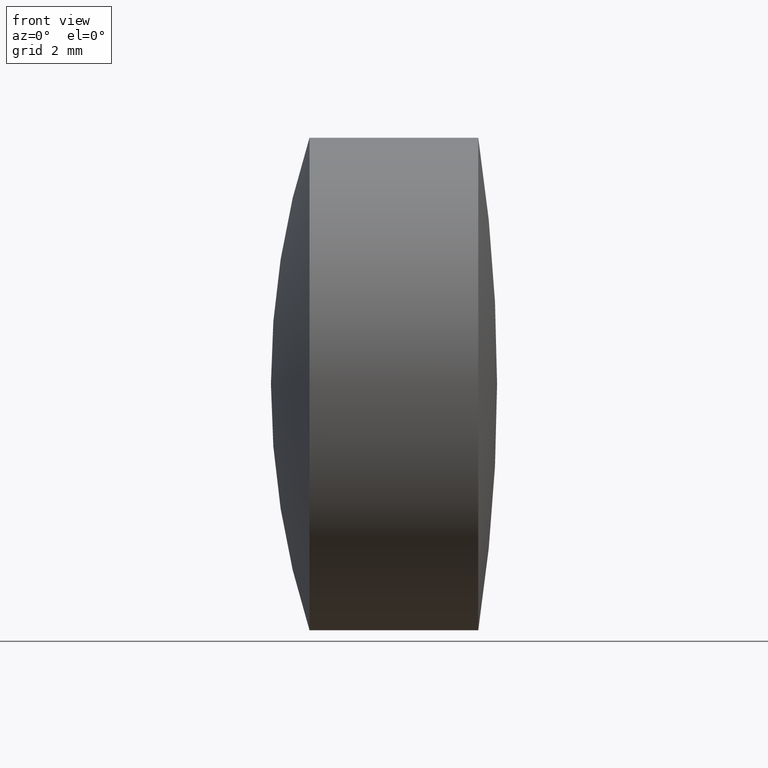
[diagram: clean part render]
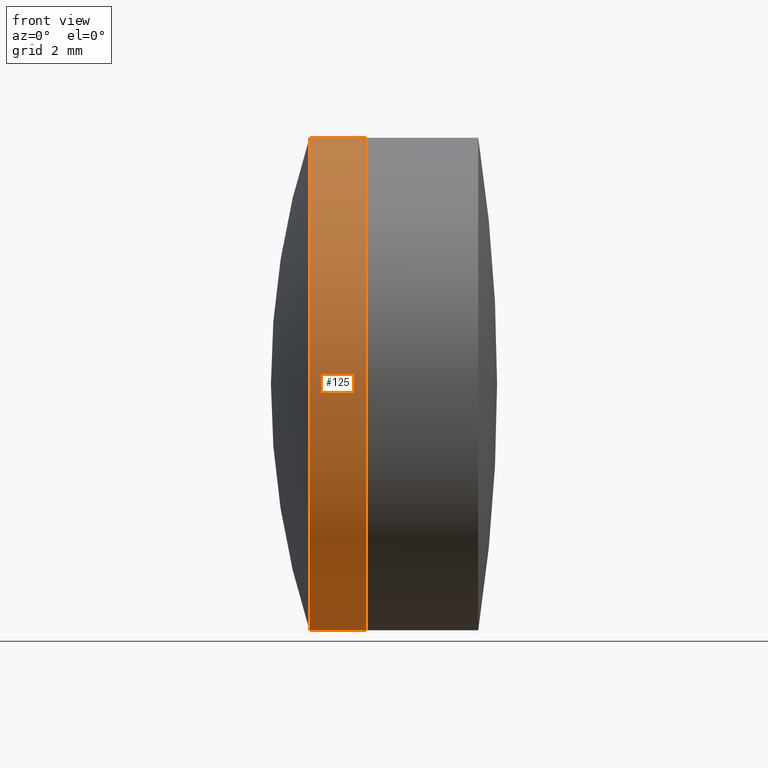
[diagram: same view with one face highlighted and labeled with its STEP entity id]
A machine part, front view. The second image highlights one B-rep face of the part: STEP entity #125.
In plain terms, the highlighted cylindrical surface (partial cylindrical patch) has radius 6.25 mm, axis along (-1, -0, -0).
Its self-contained STEP definition (entity closure, byte-faithful):
#26 = CARTESIAN_POINT ( 'NONE',  ( -0.1820940951612623800, 0.0000000000000000000, 6.250000000000002700 ) ) ;
#30 = EDGE_CURVE ( 'NONE', #344, #227, #184, .T. ) ;
#32 = CARTESIAN_POINT ( 'NONE',  ( -0.1820940951612623800, 7.654042494670960600E-016, -6.250000000000003600 ) ) ;
#43 = ORIENTED_EDGE ( 'NONE', *, *, #279, .F. ) ;
#52 = CARTESIAN_POINT ( 'NONE',  ( -0.1820940951612632400, 0.0000000000000000000, 0.0000000000000000000 ) ) ;
#69 = DIRECTION ( 'NONE',  ( -1.000000000000000000, -0.0000000000000000000, -0.0000000000000000000 ) ) ;
#74 = DIRECTION ( 'NONE',  ( 0.0000000000000000000, 0.0000000000000000000, 1.000000000000000000 ) ) ;
#83 = VECTOR ( 'NONE', #300, 1000.000000000000000 ) ;
#87 = ORIENTED_EDGE ( 'NONE', *, *, #30, .T. ) ;
#92 = DIRECTION ( 'NONE',  ( -1.000000000000000000, -0.0000000000000000000, -0.0000000000000000000 ) ) ;
#114 = VERTEX_POINT ( 'NONE', #206 ) ;
#125 = ADVANCED_FACE ( 'NONE', ( #240 ), #273, .T. ) ;
#130 = AXIS2_PLACEMENT_3D ( 'NONE', #230, #92, #287 ) ;
#132 = CIRCLE ( 'NONE', #130, 6.249999999999999100 ) ;
#144 = DIRECTION ( 'NONE',  ( -1.000000000000000000, -0.0000000000000000000, -0.0000000000000000000 ) ) ;
#151 = CARTESIAN_POINT ( 'NONE',  ( 1.272351808119067900, 0.0000000000000000000, 6.249999999999999100 ) ) ;
#184 = LINE ( 'NONE', #245, #197 ) ;
#189 = ORIENTED_EDGE ( 'NONE', *, *, #193, .T. ) ;
#193 = EDGE_CURVE ( 'NONE', #114, #344, #132, .T. ) ;
#197 = VECTOR ( 'NONE', #253, 1000.000000000000000 ) ;
#201 = LINE ( 'NONE', #209, #83 ) ;
#206 = CARTESIAN_POINT ( 'NONE',  ( 1.272351808119067900, 7.654042494670956600E-016, -6.249999999999999100 ) ) ;
#207 = ORIENTED_EDGE ( 'NONE', *, *, #324, .F. ) ;
#209 = CARTESIAN_POINT ( 'NONE',  ( -9.702612178336682500, 7.654042494670956600E-016, -6.249999999999999100 ) ) ;
#227 = VERTEX_POINT ( 'NONE', #26 ) ;
#230 = CARTESIAN_POINT ( 'NONE',  ( 1.272351808119067900, 0.0000000000000000000, 0.0000000000000000000 ) ) ;
#240 = FACE_OUTER_BOUND ( 'NONE', #252, .T. ) ;
#245 = CARTESIAN_POINT ( 'NONE',  ( -9.702612178336682500, 0.0000000000000000000, 6.249999999999999100 ) ) ;
#252 = EDGE_LOOP ( 'NONE', ( #43, #189, #87, #207 ) ) ;
#253 = DIRECTION ( 'NONE',  ( -1.000000000000000000, -0.0000000000000000000, -0.0000000000000000000 ) ) ;
#273 = CYLINDRICAL_SURFACE ( 'NONE', #308, 6.249999999999999100 ) ;
#279 = EDGE_CURVE ( 'NONE', #114, #338, #201, .T. ) ;
#281 = AXIS2_PLACEMENT_3D ( 'NONE', #52, #144, #345 ) ;
#287 = DIRECTION ( 'NONE',  ( 0.0000000000000000000, 0.0000000000000000000, 1.000000000000000000 ) ) ;
#295 = CARTESIAN_POINT ( 'NONE',  ( -9.702612178336682500, 0.0000000000000000000, 0.0000000000000000000 ) ) ;
#300 = DIRECTION ( 'NONE',  ( -1.000000000000000000, -0.0000000000000000000, -0.0000000000000000000 ) ) ;
#305 = CIRCLE ( 'NONE', #281, 6.249999999999999100 ) ;
#308 = AXIS2_PLACEMENT_3D ( 'NONE', #295, #69, #74 ) ;
#324 = EDGE_CURVE ( 'NONE', #338, #227, #305, .T. ) ;
#338 = VERTEX_POINT ( 'NONE', #32 ) ;
#344 = VERTEX_POINT ( 'NONE', #151 ) ;
#345 = DIRECTION ( 'NONE',  ( 0.0000000000000000000, 0.0000000000000000000, 1.000000000000000000 ) ) ;